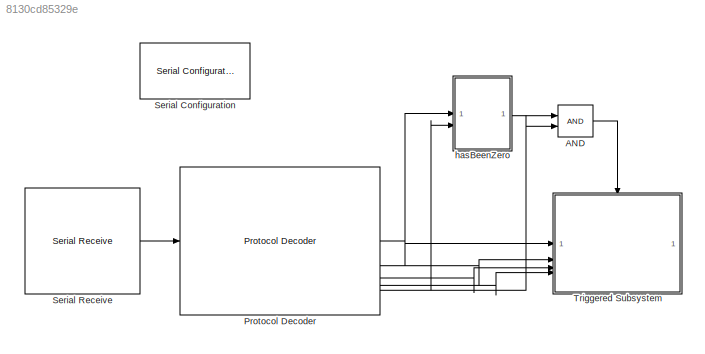
MODEL slx_8130cd85329e
KIND model
CONFIG AbsTol = auto
CONFIG EnableMultiTasking = off
CONFIG FixedStep = 0.0005
CONFIG MaxStep = auto
CONFIG MinStep = auto
CONFIG RelTol = 1e-3
CONFIG SampleTimeConstraint = Unconstrained
CONFIG SolverName = FixedStepAuto
CONFIG StartTime = 0.0
CONFIG StopTime = inf
BLOCK [Logic] AND
  AllPortsSameDT = off
  IconShape = distinctive
  OutDataTypeStr = boolean
BLOCK [Reference] Protocol Decoder  REF=embeddedblockslib/Protocol Decoder
  LibrarySourceBlock = nucleoutilitieslib/Protocol Decoder
  SourceBlock = embeddedblockslib/Protocol Decoder
  SourceType = matlabshared.embedded_utilities.blocks.ProtocolDecoderBlock
BLOCK [Reference] Serial Configuration  REF=instrumentseriallib/Serial Configuration
  LibrarySourceBlock = embeddedtargetslib/Host Communication/Serial Configuration
  Priority = -200000
  SourceBlock = instrumentseriallib/Serial Configuration
  SourceType = system.SerialConfiguration
BLOCK [Reference] Serial Receive  REF=instrumentseriallib/Serial Receive
  LibrarySourceBlock = embeddedtargetslib/Host Communication/Serial Receive
  Priority = 1
  SourceBlock = instrumentseriallib/Serial Receive
  SourceType = system.SerialReceive
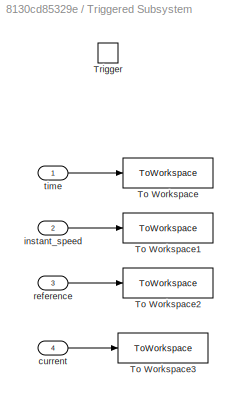
BLOCK [SubSystem] Triggered Subsystem
  TreatAsAtomicUnit = on
BLOCK [ToWorkspace] Triggered Subsystem/To Workspace
  FixptAsFi = on
  MaxDataPoints = inf
  SampleTime = -1
  SaveFormat = Timeseries
  VariableName = time
BLOCK [ToWorkspace] Triggered Subsystem/To Workspace1
  FixptAsFi = on
  MaxDataPoints = inf
  SampleTime = -1
  SaveFormat = Timeseries
  VariableName = instant_speed
BLOCK [ToWorkspace] Triggered Subsystem/To Workspace2
  FixptAsFi = on
  MaxDataPoints = inf
  SampleTime = -1
  SaveFormat = Timeseries
  VariableName = reference
BLOCK [ToWorkspace] Triggered Subsystem/To Workspace3
  FixptAsFi = on
  MaxDataPoints = inf
  SampleTime = -1
  SaveFormat = Timeseries
  VariableName = current
BLOCK [TriggerPort] Triggered Subsystem/Trigger
  OutputDataType = int8
  StatesWhenEnabling = held
  VariantControl = (inherit)
BLOCK [Inport] Triggered Subsystem/current
  Port = 4
  PortDimensions = 1
BLOCK [Inport] Triggered Subsystem/instant_speed
  Port = 2
  PortDimensions = 1
BLOCK [Inport] Triggered Subsystem/reference
  Port = 3
  PortDimensions = 1
BLOCK [Inport] Triggered Subsystem/time
  PortDimensions = 1
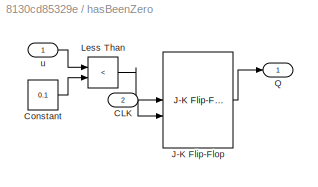
BLOCK [SubSystem] hasBeenZero
BLOCK [Inport] hasBeenZero/CLK
  Port = 2
BLOCK [Constant] hasBeenZero/Constant
  Value = 0.1
BLOCK [Reference] hasBeenZero/J-K Flip-Flop  REF=simulink_extras/Flip Flops/J-K
Flip-Flop
  SourceBlock = simulink_extras/Flip Flops/J-K\nFlip-Flop
  SourceType = JKFlipFlop
BLOCK [RelationalOperator] hasBeenZero/Less Than
  InputSameDT = off
  Operator = <
  OutDataTypeStr = boolean
  RndMeth = Simplest
BLOCK [Outport] hasBeenZero/Q
BLOCK [Inport] hasBeenZero/u
LINE AND:1 -> Triggered Subsystem:trigger
NET Protocol Decoder:1 -> Triggered Subsystem:1, hasBeenZero:1
LINE Protocol Decoder:2 -> Triggered Subsystem:2
LINE Protocol Decoder:3 -> Triggered Subsystem:3
LINE Protocol Decoder:4 -> Triggered Subsystem:4
NET Protocol Decoder:5 -> AND:2, hasBeenZero:2
LINE Serial Receive:1 -> Protocol Decoder:1
LINE Triggered Subsystem/current:1 -> Triggered Subsystem/To Workspace3:1
LINE Triggered Subsystem/instant_speed:1 -> Triggered Subsystem/To Workspace1:1
LINE Triggered Subsystem/reference:1 -> Triggered Subsystem/To Workspace2:1
LINE Triggered Subsystem/time:1 -> Triggered Subsystem/To Workspace:1
LINE hasBeenZero/CLK:1 -> hasBeenZero/J-K Flip-Flop:2
LINE hasBeenZero/Constant:1 -> hasBeenZero/Less Than:2
LINE hasBeenZero/J-K Flip-Flop:1 -> hasBeenZero/Q:1
LINE hasBeenZero/Less Than:1 -> hasBeenZero/J-K Flip-Flop:1
LINE hasBeenZero/u:1 -> hasBeenZero/Less Than:1
LINE hasBeenZero:1 -> AND:1
note: NET lines group one-source signal fan-out (src -> all destinations, sorted); 1:1 wires keep LINE
